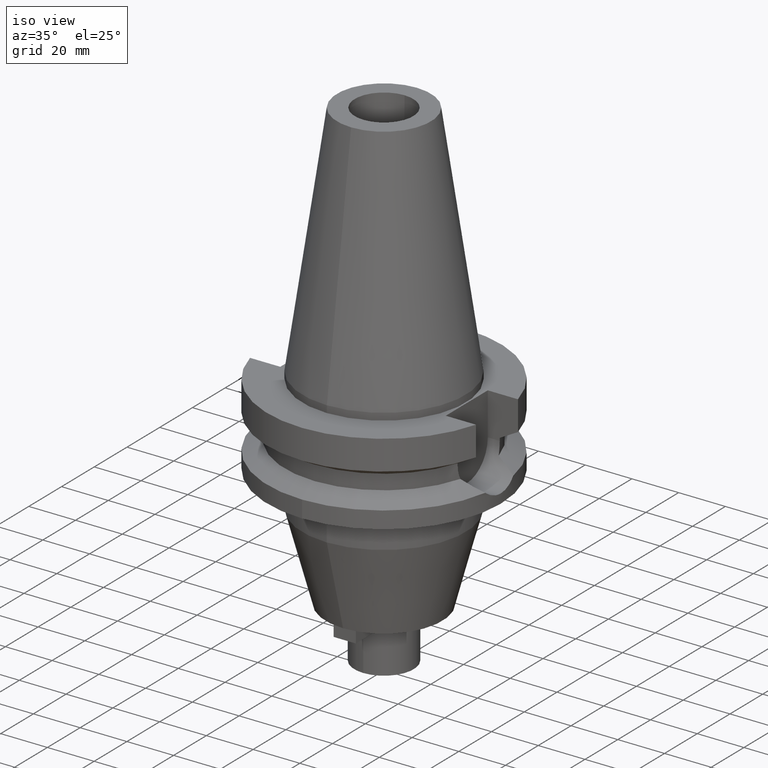
[diagram: clean part render]
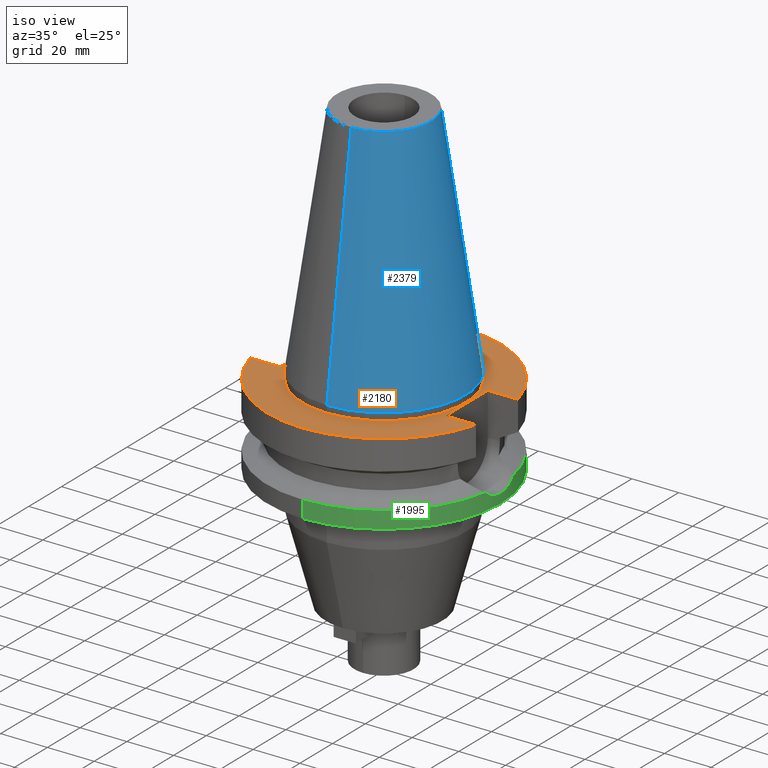
[diagram: same view with three faces highlighted in distinct colors, each labeled with its STEP entity id]
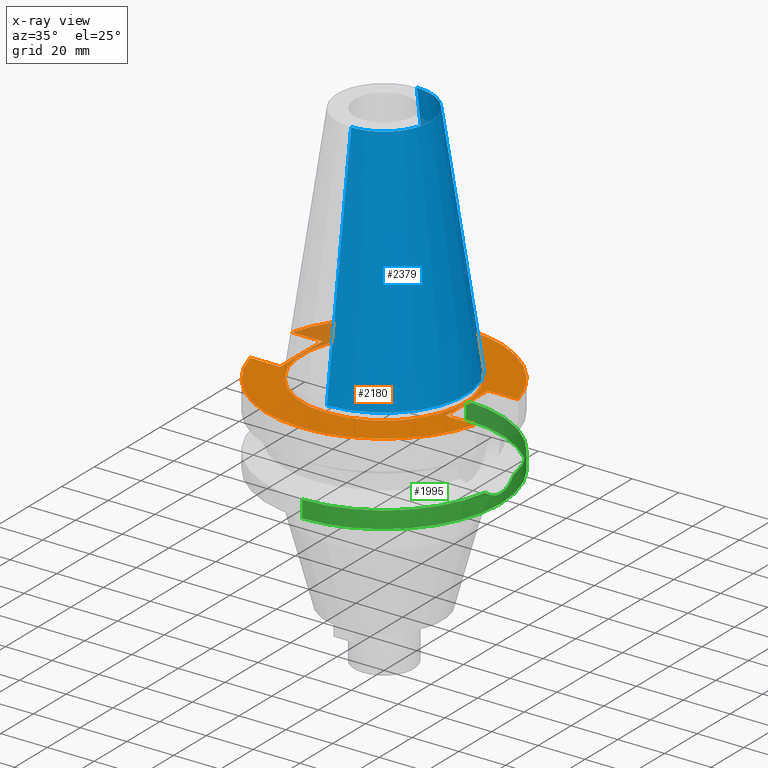
[diagram: x-ray of the same camera — body ghosted, the three highlighted faces saturated]
A machine part, iso view with three faces highlighted in distinct colors.
The next image is the same camera in x-ray (body ghosted, the three faces saturated) — at least one of them is partly hidden behind the body in this view.
Their STEP definitions:

[orange] entity #2180 — the highlighted planar face has unit normal (0, 0, -1).
#752=DIRECTION('',(1.E0,0.E0,0.E0));
#753=VECTOR('',#752,1.292057015392E1);
#754=CARTESIAN_POINT('',(3.54E1,1.285E1,-3.E0));
#755=LINE('',#754,#753);
#799=DIRECTION('',(0.E0,1.E0,0.E0));
#800=VECTOR('',#799,2.57E1);
#801=CARTESIAN_POINT('',(-3.54E1,-1.285E1,-3.E0));
#802=LINE('',#801,#800);
#806=DIRECTION('',(-1.E0,0.E0,0.E0));
#807=VECTOR('',#806,1.292057015392E1);
#808=CARTESIAN_POINT('',(-3.54E1,1.285E1,-3.E0));
#809=LINE('',#808,#807);
#813=CARTESIAN_POINT('',(0.E0,1.377605184361E-14,-3.E0));
#814=DIRECTION('',(0.E0,0.E0,-1.E0));
#815=DIRECTION('',(-9.664114030784E-1,2.57E-1,0.E0));
#816=AXIS2_PLACEMENT_3D('',#813,#814,#815);
#821=CARTESIAN_POINT('',(0.E0,1.377605184361E-14,-3.E0));
#822=DIRECTION('',(0.E0,0.E0,-1.E0));
#823=DIRECTION('',(0.E0,1.E0,0.E0));
#824=AXIS2_PLACEMENT_3D('',#821,#822,#823);
#829=DIRECTION('',(0.E0,-1.E0,0.E0));
#830=VECTOR('',#829,2.57E1);
#831=CARTESIAN_POINT('',(3.54E1,1.285E1,-3.E0));
#832=LINE('',#831,#830);
#836=DIRECTION('',(1.E0,0.E0,0.E0));
#837=VECTOR('',#836,1.292057015392E1);
#838=CARTESIAN_POINT('',(3.54E1,-1.285E1,-3.E0));
#839=LINE('',#838,#837);
#843=CARTESIAN_POINT('',(0.E0,1.377605184361E-14,-3.E0));
#844=DIRECTION('',(0.E0,0.E0,-1.E0));
#845=DIRECTION('',(9.664114030784E-1,-2.57E-1,0.E0));
#846=AXIS2_PLACEMENT_3D('',#843,#844,#845);
#851=CARTESIAN_POINT('',(0.E0,1.377605184361E-14,-3.E0));
#852=DIRECTION('',(0.E0,0.E0,-1.E0));
#853=DIRECTION('',(0.E0,-1.E0,0.E0));
#854=AXIS2_PLACEMENT_3D('',#851,#852,#853);
#859=CARTESIAN_POINT('',(0.E0,1.377605184361E-14,-3.E0));
#860=DIRECTION('',(0.E0,0.E0,1.E0));
#861=DIRECTION('',(0.E0,-1.E0,0.E0));
#862=AXIS2_PLACEMENT_3D('',#859,#860,#861);
#867=CARTESIAN_POINT('',(0.E0,1.377605184361E-14,-3.E0));
#868=DIRECTION('',(0.E0,0.E0,1.E0));
#869=DIRECTION('',(0.E0,1.E0,0.E0));
#870=AXIS2_PLACEMENT_3D('',#867,#868,#869);
#905=DIRECTION('',(-1.E0,0.E0,0.E0));
#906=VECTOR('',#905,1.292057015392E1);
#907=CARTESIAN_POINT('',(-3.54E1,-1.285E1,-3.E0));
#908=LINE('',#907,#906);
#1431=CARTESIAN_POINT('',(-3.54E1,-1.285E1,-3.E0));
#1432=VERTEX_POINT('',#1431);
#1433=CARTESIAN_POINT('',(-4.832057015392E1,-1.285E1,-3.E0));
#1434=VERTEX_POINT('',#1433);
#1437=CARTESIAN_POINT('',(-3.54E1,1.285E1,-3.E0));
#1438=VERTEX_POINT('',#1437);
#1439=CARTESIAN_POINT('',(-4.832057015392E1,1.285E1,-3.E0));
#1440=VERTEX_POINT('',#1439);
#1441=CARTESIAN_POINT('',(-1.065814103640E-14,5.E1,-3.E0));
#1442=CARTESIAN_POINT('',(4.832057015392E1,1.285E1,-3.E0));
#1443=VERTEX_POINT('',#1441);
#1444=VERTEX_POINT('',#1442);
#1445=CARTESIAN_POINT('',(3.54E1,1.285E1,-3.E0));
#1446=VERTEX_POINT('',#1445);
#1447=CARTESIAN_POINT('',(3.54E1,-1.285E1,-3.E0));
#1448=VERTEX_POINT('',#1447);
#1449=CARTESIAN_POINT('',(4.832057015392E1,-1.285E1,-3.E0));
#1450=VERTEX_POINT('',#1449);
#1451=CARTESIAN_POINT('',(1.065814103640E-14,-5.E1,-3.E0));
#1452=VERTEX_POINT('',#1451);
#1453=CARTESIAN_POINT('',(0.E0,-3.4925E1,-3.E0));
#1454=CARTESIAN_POINT('',(0.E0,3.4925E1,-3.E0));
#1455=VERTEX_POINT('',#1453);
#1456=VERTEX_POINT('',#1454);
#2149=CARTESIAN_POINT('',(0.E0,0.E0,-3.E0));
#2150=DIRECTION('',(0.E0,0.E0,-1.E0));
#2151=DIRECTION('',(0.E0,-1.E0,0.E0));
#2152=AXIS2_PLACEMENT_3D('',#2149,#2150,#2151);
#2153=PLANE('',#2152);
#2155=ORIENTED_EDGE('',*,*,#2154,.T.);
#2157=ORIENTED_EDGE('',*,*,#2156,.T.);
#2159=ORIENTED_EDGE('',*,*,#2158,.T.);
#2161=ORIENTED_EDGE('',*,*,#2160,.T.);
#2162=ORIENTED_EDGE('',*,*,#2125,.F.);
#2163=ORIENTED_EDGE('',*,*,#2139,.T.);
#2165=ORIENTED_EDGE('',*,*,#2164,.T.);
#2167=ORIENTED_EDGE('',*,*,#2166,.T.);
#2169=ORIENTED_EDGE('',*,*,#2168,.T.);
#2171=ORIENTED_EDGE('',*,*,#2170,.F.);
#2172=EDGE_LOOP('',(#2155,#2157,#2159,#2161,#2162,#2163,#2165,#2167,#2169,
#2171));
#2173=FACE_OUTER_BOUND('',#2172,.F.);
#2175=ORIENTED_EDGE('',*,*,#2174,.T.);
#2177=ORIENTED_EDGE('',*,*,#2176,.T.);
#2178=EDGE_LOOP('',(#2175,#2177));
#2179=FACE_BOUND('',#2178,.F.);
#817=CIRCLE('',#816,5.E1);
#825=CIRCLE('',#824,5.E1);
#847=CIRCLE('',#846,5.E1);
#855=CIRCLE('',#854,5.E1);
#863=CIRCLE('',#862,3.4925E1);
#871=CIRCLE('',#870,3.4925E1);
#2125=EDGE_CURVE('',#1446,#1444,#755,.T.);
#2139=EDGE_CURVE('',#1446,#1448,#832,.T.);
#2154=EDGE_CURVE('',#1432,#1438,#802,.T.);
#2156=EDGE_CURVE('',#1438,#1440,#809,.T.);
#2158=EDGE_CURVE('',#1440,#1443,#817,.T.);
#2160=EDGE_CURVE('',#1443,#1444,#825,.T.);
#2164=EDGE_CURVE('',#1448,#1450,#839,.T.);
#2166=EDGE_CURVE('',#1450,#1452,#847,.T.);
#2168=EDGE_CURVE('',#1452,#1434,#855,.T.);
#2170=EDGE_CURVE('',#1432,#1434,#908,.T.);
#2174=EDGE_CURVE('',#1455,#1456,#863,.T.);
#2176=EDGE_CURVE('',#1456,#1455,#871,.T.);
#2180=ADVANCED_FACE('',(#2173,#2179),#2153,.F.);

[blue] entity #2379 — the highlighted conical surface has half-angle 8.297 deg.
#1082=DIRECTION('',(0.E0,-1.443043893539E-1,-9.895333461856E-1));
#1083=VECTOR('',#1082,1.028767755957E2);
#1084=CARTESIAN_POINT('',(0.E0,-2.007942971896E1,1.018E2));
#1085=LINE('',#1084,#1083);
#1097=DIRECTION('',(0.E0,1.443043893539E-1,-9.895333461856E-1));
#1098=VECTOR('',#1097,1.028767755957E2);
#1099=CARTESIAN_POINT('',(0.E0,2.007942971896E1,1.018E2));
#1100=LINE('',#1099,#1098);
#1104=CARTESIAN_POINT('',(0.E0,0.E0,-5.115907697473E-13));
#1105=DIRECTION('',(0.E0,0.E0,-1.E0));
#1106=DIRECTION('',(0.E0,1.E0,0.E0));
#1107=AXIS2_PLACEMENT_3D('',#1104,#1105,#1106);
#1120=CARTESIAN_POINT('',(0.E0,0.E0,1.018E2));
#1121=DIRECTION('',(0.E0,0.E0,-1.E0));
#1122=DIRECTION('',(0.E0,1.E0,0.E0));
#1123=AXIS2_PLACEMENT_3D('',#1120,#1121,#1122);
#1457=CARTESIAN_POINT('',(0.E0,3.4925E1,-5.044853423897E-13));
#1458=VERTEX_POINT('',#1457);
#1459=CARTESIAN_POINT('',(0.E0,-3.4925E1,-5.044853423897E-13));
#1460=VERTEX_POINT('',#1459);
#1461=CARTESIAN_POINT('',(0.E0,2.007942971896E1,1.018E2));
#1462=VERTEX_POINT('',#1461);
#1463=CARTESIAN_POINT('',(0.E0,-2.007942971896E1,1.018E2));
#1464=VERTEX_POINT('',#1463);
#2367=CARTESIAN_POINT('',(0.E0,0.E0,5.09E1));
#2368=DIRECTION('',(0.E0,0.E0,-1.E0));
#2369=DIRECTION('',(0.E0,-1.E0,0.E0));
#2370=AXIS2_PLACEMENT_3D('',#2367,#2368,#2369);
#2371=CONICAL_SURFACE('',#2370,2.750221485948E1,8.297E0);
#2372=ORIENTED_EDGE('',*,*,#2357,.T.);
#2373=ORIENTED_EDGE('',*,*,#2334,.T.);
#2374=ORIENTED_EDGE('',*,*,#2361,.F.);
#2376=ORIENTED_EDGE('',*,*,#2375,.F.);
#2377=EDGE_LOOP('',(#2372,#2373,#2374,#2376));
#2378=FACE_OUTER_BOUND('',#2377,.F.);
#1108=CIRCLE('',#1107,3.4925E1);
#1124=CIRCLE('',#1123,2.007942971896E1);
#2334=EDGE_CURVE('',#1458,#1460,#1108,.T.);
#2357=EDGE_CURVE('',#1462,#1458,#1100,.T.);
#2361=EDGE_CURVE('',#1464,#1460,#1085,.T.);
#2375=EDGE_CURVE('',#1462,#1464,#1124,.T.);
#2379=ADVANCED_FACE('',(#2378),#2371,.T.);

[green] entity #1995 — the highlighted cylindrical surface (partial cylindrical patch) has radius 50 mm, axis along (0, 0, -1).
#502=CARTESIAN_POINT('',(0.E0,1.377605184361E-14,-3.8E1));
#503=DIRECTION('',(0.E0,0.E0,1.E0));
#504=DIRECTION('',(0.E0,-1.E0,0.E0));
#505=AXIS2_PLACEMENT_3D('',#502,#503,#504);
#534=CARTESIAN_POINT('',(4.926250064874E1,-8.556052234130E0,-3.073730776427E1));
#535=CARTESIAN_POINT('',(4.936649611958E1,-7.957285792582E0,-3.127166809523E1));
#536=CARTESIAN_POINT('',(4.956428496855E1,-6.687832623343E0,-3.220416769683E1));
#537=CARTESIAN_POINT('',(4.980480412100E1,-4.595876696287E0,-3.322690243423E1));
#538=CARTESIAN_POINT('',(4.996455573366E1,-2.307453981232E0,-3.386325285714E1));
#539=CARTESIAN_POINT('',(5.E1,-7.763522324144E-1,-3.4E1));
#540=CARTESIAN_POINT('',(5.E1,1.148045141861E-14,-3.4E1));
#545=CARTESIAN_POINT('',(5.E1,1.148045141861E-14,-3.4E1));
#546=CARTESIAN_POINT('',(5.E1,7.764873854848E-1,-3.4E1));
#547=CARTESIAN_POINT('',(4.996454298002E1,2.307787718897E0,-3.386320330145E1));
#548=CARTESIAN_POINT('',(4.980476725076E1,4.596271130748E0,-3.322675213054E1));
#549=CARTESIAN_POINT('',(4.956424417091E1,6.688114654487E0,-3.220398524273E1));
#550=CARTESIAN_POINT('',(4.936647870307E1,7.957386070240E0,-3.127157860390E1));
#551=CARTESIAN_POINT('',(4.926250064874E1,8.556052234130E0,-3.073730776427E1));
#556=DIRECTION('',(0.E0,2.250196262219E-14,-1.E0));
#557=VECTOR('',#556,7.262692235730E0);
#558=CARTESIAN_POINT('',(0.E0,5.E1,-3.073730776427E1));
#559=LINE('',#558,#557);
#614=CARTESIAN_POINT('',(0.E0,0.E0,-3.073730776427E1));
#615=DIRECTION('',(0.E0,0.E0,-1.E0));
#616=DIRECTION('',(9.852500129747E-1,-1.711210446826E-1,0.E0));
#617=AXIS2_PLACEMENT_3D('',#614,#615,#616);
#658=DIRECTION('',(0.E0,-2.054527022026E-14,-1.E0));
#659=VECTOR('',#658,7.262692235730E0);
#660=CARTESIAN_POINT('',(0.E0,-5.E1,-3.073730776427E1));
#661=LINE('',#660,#659);
#684=CARTESIAN_POINT('',(0.E0,0.E0,-3.073730776427E1));
#685=DIRECTION('',(0.E0,0.E0,-1.E0));
#686=DIRECTION('',(0.E0,1.E0,0.E0));
#687=AXIS2_PLACEMENT_3D('',#684,#685,#686);
#1380=CARTESIAN_POINT('',(0.E0,-5.E1,-3.8E1));
#1381=CARTESIAN_POINT('',(0.E0,5.E1,-3.8E1));
#1382=VERTEX_POINT('',#1380);
#1383=VERTEX_POINT('',#1381);
#1384=VERTEX_POINT('',#545);
#1385=VERTEX_POINT('',#551);
#1386=VERTEX_POINT('',#534);
#1387=CARTESIAN_POINT('',(0.E0,5.E1,-3.073730776427E1));
#1388=VERTEX_POINT('',#1387);
#1389=CARTESIAN_POINT('',(0.E0,-5.E1,-3.073730776427E1));
#1390=VERTEX_POINT('',#1389);
#1975=CARTESIAN_POINT('',(0.E0,1.377605184361E-14,1.1249E2));
#1976=DIRECTION('',(0.E0,0.E0,-1.E0));
#1977=DIRECTION('',(0.E0,-1.E0,0.E0));
#1978=AXIS2_PLACEMENT_3D('',#1975,#1976,#1977);
#1979=CYLINDRICAL_SURFACE('',#1978,5.E1);
#1981=ORIENTED_EDGE('',*,*,#1980,.T.);
#1983=ORIENTED_EDGE('',*,*,#1982,.T.);
#1985=ORIENTED_EDGE('',*,*,#1984,.F.);
#1987=ORIENTED_EDGE('',*,*,#1986,.T.);
#1988=ORIENTED_EDGE('',*,*,#1964,.F.);
#1990=ORIENTED_EDGE('',*,*,#1989,.F.);
#1992=ORIENTED_EDGE('',*,*,#1991,.F.);
#1993=EDGE_LOOP('',(#1981,#1983,#1985,#1987,#1988,#1990,#1992));
#1994=FACE_OUTER_BOUND('',#1993,.F.);
#506=CIRCLE('',#505,5.E1);
#541=B_SPLINE_CURVE_WITH_KNOTS('',3,(#534,#535,#536,#537,#538,#539,#540),
.UNSPECIFIED.,.F.,.F.,(4,1,1,1,4),(0.E0,2.5E-1,5.E-1,7.5E-1,1.E0),
.UNSPECIFIED.);
#552=B_SPLINE_CURVE_WITH_KNOTS('',3,(#545,#546,#547,#548,#549,#550,#551),
.UNSPECIFIED.,.F.,.F.,(4,1,1,1,4),(0.E0,2.5E-1,5.E-1,7.5E-1,1.E0),
.UNSPECIFIED.);
#618=CIRCLE('',#617,5.E1);
#688=CIRCLE('',#687,5.E1);
#1964=EDGE_CURVE('',#1382,#1383,#506,.T.);
#1980=EDGE_CURVE('',#1386,#1384,#541,.T.);
#1982=EDGE_CURVE('',#1384,#1385,#552,.T.);
#1984=EDGE_CURVE('',#1388,#1385,#688,.T.);
#1986=EDGE_CURVE('',#1388,#1383,#559,.T.);
#1989=EDGE_CURVE('',#1390,#1382,#661,.T.);
#1991=EDGE_CURVE('',#1386,#1390,#618,.T.);
#1995=ADVANCED_FACE('',(#1994),#1979,.T.);